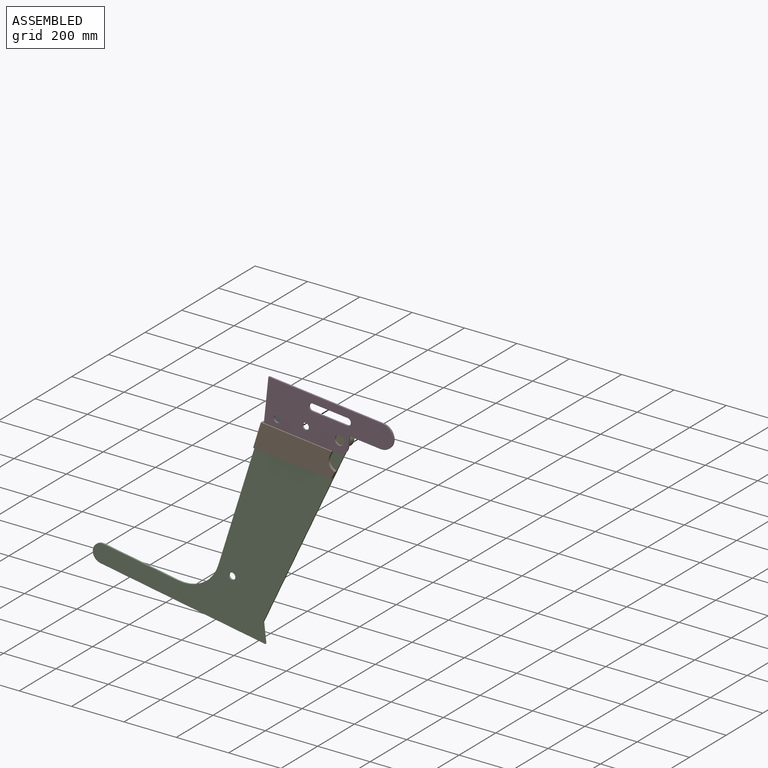
[diagram: assembled view]
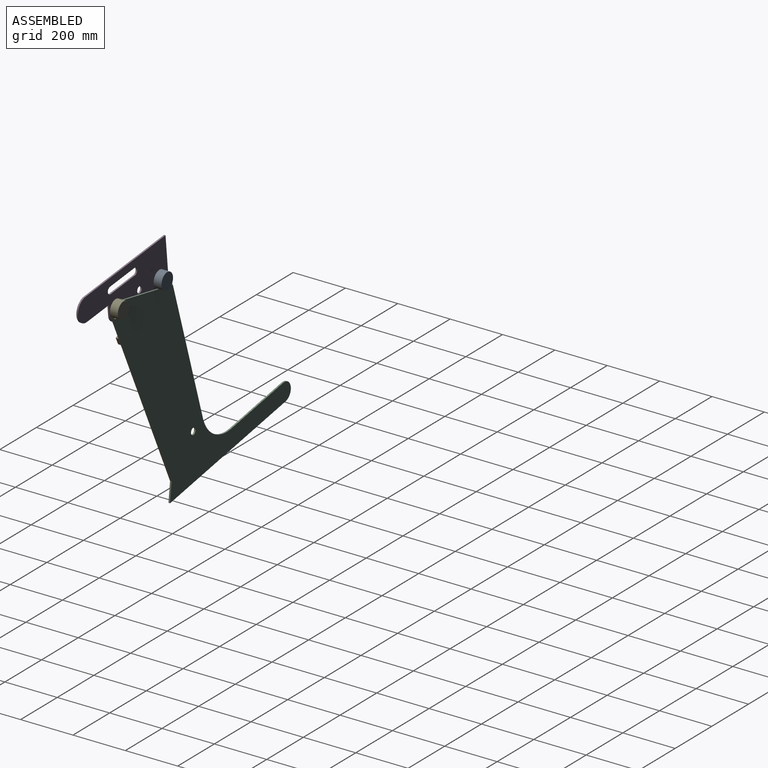
[diagram: assembled view, second angle]
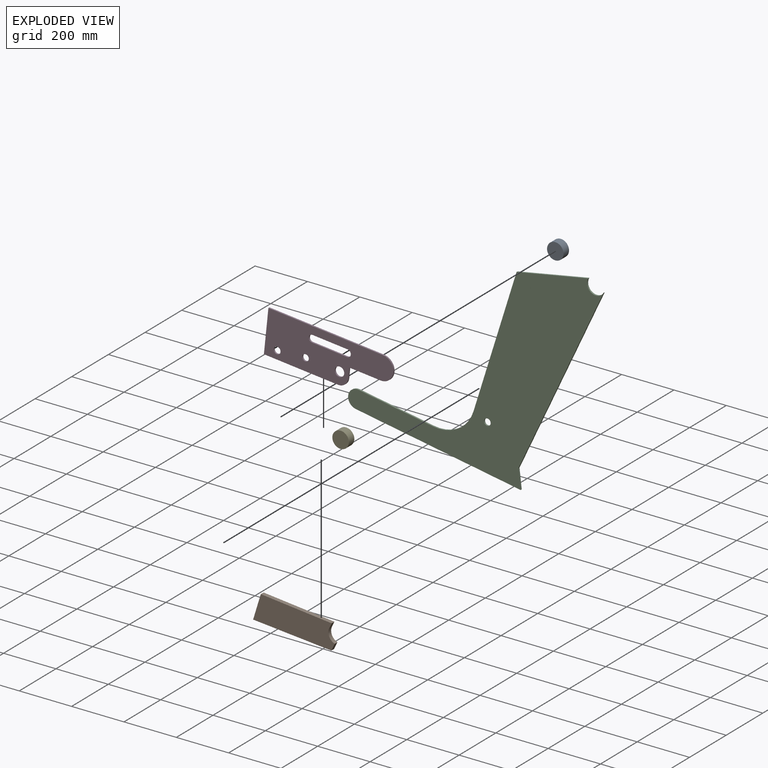
[diagram: exploded view]
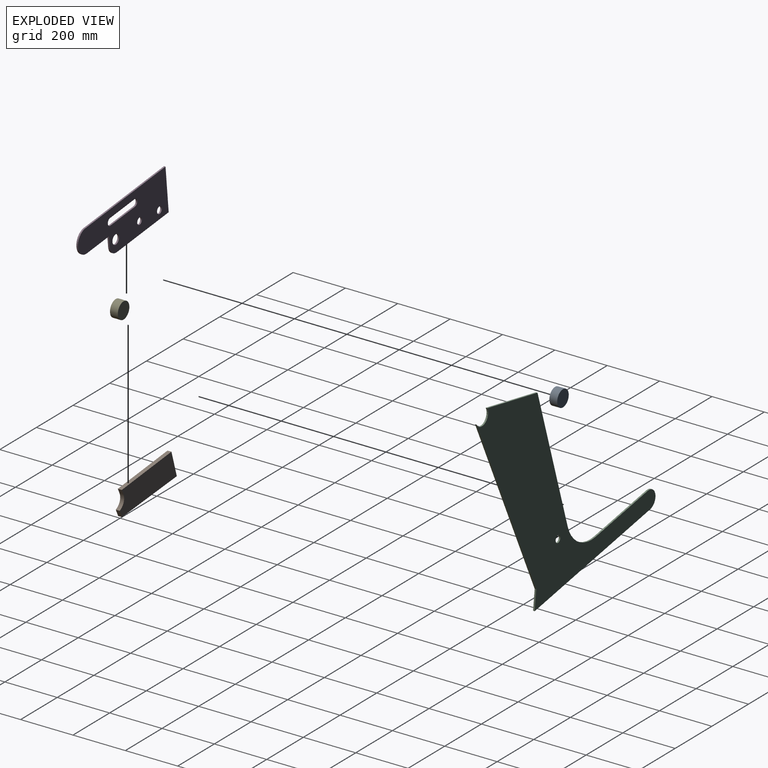
[diagram: exploded view, second angle]
ASSEMBLY  parts=5 mates=4
PART A: 3 faces, bbox 30x63x63 mm
  f0: cylinder r=31.5mm len=63mm, axis (-1,0,0), area 5937.6mm2, adj f1,f2
  f1: plane 63x63mm, normal (1,0,0), area 3117.2mm2, adj f0
  f2: plane 63x63mm, normal (-1,0,0), area 3117.2mm2, adj f0
PART B: 9 faces, bbox 310.1x15x98.1 mm
  f0: plane 27.72x15mm, normal (-0.94,0,0.34), area 442.4mm2, adj f1,f5,f6,f7
  f1: plane 299.97x15mm, normal (-0.01,0,1), area 4500mm2, adj f0,f2,f6,f7
  f2: plane 98.14x19.17mm, normal (0.98,0,-0.19), area 1500mm2, adj f1,f3,f6,f7
  f3: plane 272.43x15mm, normal (0,0,-1), area 4086.5mm2, adj f2,f4,f6,f7
  f4: plane 19.68x15mm, normal (-0.94,0,0.34), area 314.2mm2, adj f3,f6,f7,f8
  f5: plane 15x4.7mm, normal (-0.34,0,-0.94), area 75mm2, adj f0,f6,f7,f8
  f6: plane 310.06x98.14mm, normal (0,1,0), area 27214.2mm2, adj f0,f1,f2,f3,f4,f5,f8
  f7: plane 310.06x98.14mm, normal (0,-1,0), area 27214.2mm2, adj f0,f1,f2,f3,f4,f5,f8
  f8: cylinder r=35mm len=44.86mm, axis (0,-1,0), area 824.7mm2, adj f4,f5,f6,f7
PART C: 12 faces, bbox 854.2x6x832.1 mm
  f0: cylinder r=136.6mm len=135.46mm, axis (0,1,0), area 1181.5mm2, adj f1,f8,f10,f11
  f1: plane 545.42x70.86mm, normal (-0.99,0,0.13), area 3300mm2, adj f0,f2,f10,f11
  f2: plane 260.77x97.73mm, normal (-0.35,0,0.94), area 1670.9mm2, adj f1,f3,f10,f11
  f3: cylinder r=34mm len=65.85mm, axis (0,1,0), area 640.9mm2, adj f2,f4,f10,f11
  f4: plane 738.33x200.23mm, normal (0.97,0,-0.26), area 4590mm2, adj f3,f5,f10,f11
  f5: plane 70x21.02mm, normal (0.96,0,0.29), area 438.5mm2, adj f4,f6,f10,f11
  f6: plane 640x6mm, normal (0,0,-1), area 3840mm2, adj f5,f7,f10,f11
  f7: cylinder r=35mm len=70mm, axis (0,1,0), area 659.7mm2, adj f6,f8,f10,f11
  f8: plane 288.44x6mm, normal (0,0,1), area 1730.6mm2, adj f0,f7,f10,f11
  f9: cylinder r=12.75mm len=25.5mm, axis (0,1,0), area 480.7mm2, adj f10,f11
  f10: plane 854.21x832.15mm, normal (0,1,0), area 235147mm2, adj f0,f1,f2,f3,f4,f5,f6,f7
  f11: plane 854.21x832.15mm, normal (0,-1,0), area 235147mm2, adj f0,f1,f2,f3,f4,f5,f6,f7
PART D: 17 faces, bbox 485x6x165 mm
  f0: plane 6x0.01mm, normal (-1,0,0), area 0.1mm2, adj f12,f14,f15
  f1: cylinder r=45mm len=90mm, axis (0,1,0), area 848.2mm2, adj f2,f11,f14,f15
  f2: plane 440x6mm, normal (0,0,-1), area 2640mm2, adj f1,f3,f14,f15
  f3: plane 165x6mm, normal (-1,0,0), area 990mm2, adj f2,f4,f14,f15
  f4: plane 285x6mm, normal (0,0,1), area 1710mm2, adj f3,f14,f15,f16
  f5: plane 40x6mm, normal (1,0,0), area 240mm2, adj f11,f14,f15,f16
  f6: plane 134x6mm, normal (0,0,1), area 804mm2, adj f7,f10,f14,f15
  f7: cylinder r=13.5mm len=27mm, axis (0,1,0), area 254.5mm2, adj f6,f8,f14,f15
  f8: plane 134x6mm, normal (0,0,-1), area 804mm2, adj f7,f10,f14,f15
  f9: cylinder r=12.5mm len=25mm, axis (0,1,0), area 471.2mm2, adj f14,f15
  f10: cylinder r=13.5mm len=27mm, axis (0,1,0), area 254.5mm2, adj f6,f8,f14,f15
  f11: plane 120x6mm, normal (0,0,1), area 720mm2, adj f1,f5,f14,f15
  f12: cylinder r=18mm len=36mm, axis (0,1,0), area 678.5mm2, adj f0,f14,f15
  f13: cylinder r=13mm len=26mm, axis (0,1,0), area 490.1mm2, adj f14,f15
  f14: plane 485x165mm, normal (0,1,0), area 60287.7mm2, adj f0,f1,f2,f3,f4,f5,f6,f7
  f15: plane 485x165mm, normal (0,-1,0), area 60287.7mm2, adj f0,f1,f2,f3,f4,f5,f6,f7
  f16: cylinder r=35mm len=35mm, axis (0,-1,0), area 329.9mm2, adj f4,f5,f14,f15
PART E: same geometry as A
PLACE A rot(axis=(0.6,0.6,0.54),123.5deg) t=(-691.25,86.21,-74.73)mm
PLACE B rot(axis=(0,-1,0),174deg) t=(-437.17,75.71,-133.11)mm
PLACE C rot(axis=(0,1,0),10deg) t=(-1405.28,86.21,-749.57)mm
PLACE D rot(axis=(1,0,-0.05),180deg) t=(-724.53,86.21,63)mm
PLACE E rot(axis=(-0.54,-0.54,0.64),114.4deg) t=(-452.97,86.21,-84.59)mm
MATE fastened B.f3 <-> D.f4  axis (0.1,0,0.99) through (-614.98,83.21,-114.42)mm
MATE revolute D.f12 <-> E.f0  axis (0,1,0) through (-452.97,86.21,-84.59)mm
MATE fastened E.f0 <-> C.f3  axis (0,-1,0) through (-452.97,86.21,-84.59)mm
MATE fastened A.f0 <-> D.f13  axis (0,-1,0) through (-691.25,86.21,-74.73)mm
